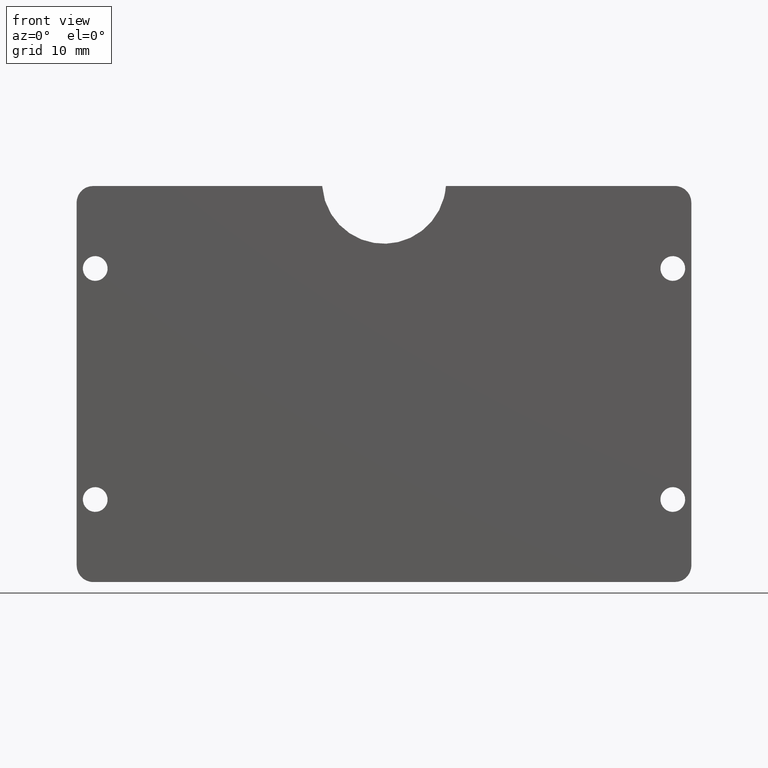
[diagram: clean part render]
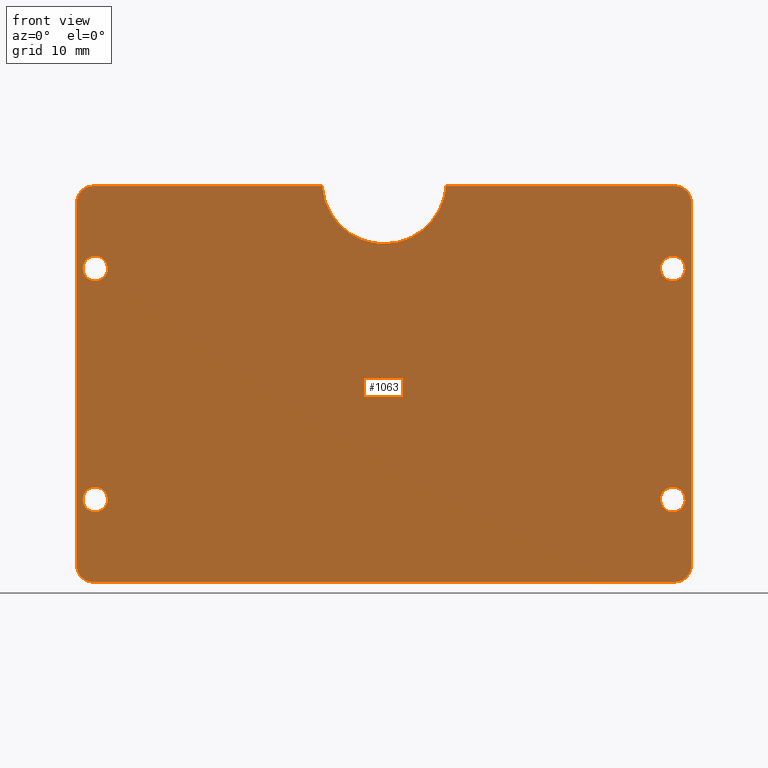
[diagram: same view with one face highlighted and labeled with its STEP entity id]
A machine part, front view. The second image highlights one B-rep face of the part: STEP entity #1063.
In plain terms, the highlighted face is a freeform B-spline surface patch.
Its self-contained STEP definition (entity closure, byte-faithful):
#66=CARTESIAN_POINT('',(33.510485710496411,-1.029293E-016,10.177051352337809));
#67=VERTEX_POINT('',#66);
#68=CARTESIAN_POINT('',(35.0,0.0,8.500000000000000));
#69=VERTEX_POINT('',#68);
#70=CARTESIAN_POINT('',(33.510485710496411,-1.029293E-016,10.177051352337806));
#71=CARTESIAN_POINT('',(33.499999999999993,0.0,10.088836179834262));
#72=CARTESIAN_POINT('',(33.500000000000000,0.0,10.0));
#73=CARTESIAN_POINT('',(33.500000000000007,0.0,8.500000000000002));
#74=CARTESIAN_POINT('',(35.0,0.0,8.500000000000000));
#82=(BOUNDED_CURVE()B_SPLINE_CURVE(2,(#70,#71,#72,#73,#74),.UNSPECIFIED.,.F.,.U.)B_SPLINE_CURVE_WITH_KNOTS((3,2,3),(0.229562473435616,0.250000000000000,0.500000000000000),.UNSPECIFIED.)CURVE()GEOMETRIC_REPRESENTATION_ITEM()RATIONAL_B_SPLINE_CURVE((0.956026754031026,0.976055948239888,1.0,0.707106781186548,1.0))REPRESENTATION_ITEM(''));
#83=EDGE_CURVE('',#67,#69,#82,.T.);
#85=CARTESIAN_POINT('',(36.497202197613127,-1.040834E-016,9.908427190376081));
#86=VERTEX_POINT('',#85);
#87=CARTESIAN_POINT('',(35.0,0.0,8.500000000000000));
#88=CARTESIAN_POINT('',(36.411059099751171,0.0,8.500000000000000));
#89=CARTESIAN_POINT('',(36.497202197613134,-1.040834E-016,9.908427190376081));
#97=(BOUNDED_CURVE()B_SPLINE_CURVE(2,(#87,#88,#89),.UNSPECIFIED.,.F.,.U.)B_SPLINE_CURVE_WITH_KNOTS((3,3),(0.500000000000000,0.739332962167835),.UNSPECIFIED.)CURVE()GEOMETRIC_REPRESENTATION_ITEM()RATIONAL_B_SPLINE_CURVE((1.0,0.719603993370018,0.976072041514321))REPRESENTATION_ITEM(''));
#98=EDGE_CURVE('',#69,#86,#97,.T.);
#165=CARTESIAN_POINT('',(35.0,0.0,11.500000000000000));
#166=VERTEX_POINT('',#165);
#167=CARTESIAN_POINT('',(35.0,0.0,11.500000000000000));
#168=CARTESIAN_POINT('',(33.667738211708254,0.0,11.500000000000000));
#169=CARTESIAN_POINT('',(33.510485710496411,-1.029293E-016,10.177051352337806));
#177=(BOUNDED_CURVE()B_SPLINE_CURVE(2,(#167,#168,#169),.UNSPECIFIED.,.F.,.U.)B_SPLINE_CURVE_WITH_KNOTS((3,3),(0.0,0.229562473435616),.UNSPECIFIED.)CURVE()GEOMETRIC_REPRESENTATION_ITEM()RATIONAL_B_SPLINE_CURVE((1.0,0.731050832946660,0.956026754031026))REPRESENTATION_ITEM(''));
#178=EDGE_CURVE('',#166,#67,#177,.T.);
#212=CARTESIAN_POINT('',(36.497202197613142,-1.040834E-016,9.908427190376081));
#213=CARTESIAN_POINT('',(36.500000000000000,0.0,9.954170854729583));
#214=CARTESIAN_POINT('',(36.500000000000007,0.0,10.0));
#215=CARTESIAN_POINT('',(36.500000000000007,0.0,11.500000000000000));
#216=CARTESIAN_POINT('',(35.0,0.0,11.500000000000000));
#224=(BOUNDED_CURVE()B_SPLINE_CURVE(2,(#212,#213,#214,#215,#216),.UNSPECIFIED.,.F.,.U.)B_SPLINE_CURVE_WITH_KNOTS((3,2,3),(0.739332962167834,0.750000000000000,1.0),.UNSPECIFIED.)CURVE()GEOMETRIC_REPRESENTATION_ITEM()RATIONAL_B_SPLINE_CURVE((0.976072041514318,0.987502787816528,1.0,0.707106781186548,1.0))REPRESENTATION_ITEM(''));
#225=EDGE_CURVE('',#86,#166,#224,.T.);
#252=CARTESIAN_POINT('',(33.510485710496411,-1.029293E-016,38.177051352337813));
#253=VERTEX_POINT('',#252);
#254=CARTESIAN_POINT('',(35.0,0.0,36.500000000000000));
#255=VERTEX_POINT('',#254);
#256=CARTESIAN_POINT('',(33.510485710496411,-1.029293E-016,38.177051352337806));
#257=CARTESIAN_POINT('',(33.499999999999993,0.0,38.088836179834267));
#258=CARTESIAN_POINT('',(33.500000000000000,0.0,38.0));
#259=CARTESIAN_POINT('',(33.500000000000007,0.0,36.500000000000007));
#260=CARTESIAN_POINT('',(35.0,0.0,36.500000000000000));
#268=(BOUNDED_CURVE()B_SPLINE_CURVE(2,(#256,#257,#258,#259,#260),.UNSPECIFIED.,.F.,.U.)B_SPLINE_CURVE_WITH_KNOTS((3,2,3),(0.229562473435616,0.250000000000000,0.500000000000000),.UNSPECIFIED.)CURVE()GEOMETRIC_REPRESENTATION_ITEM()RATIONAL_B_SPLINE_CURVE((0.956026754031026,0.976055948239888,1.0,0.707106781186548,1.0))REPRESENTATION_ITEM(''));
#269=EDGE_CURVE('',#253,#255,#268,.T.);
#271=CARTESIAN_POINT('',(36.497202197613127,-1.040834E-016,37.908427190376088));
#272=VERTEX_POINT('',#271);
#273=CARTESIAN_POINT('',(35.0,0.0,36.500000000000000));
#274=CARTESIAN_POINT('',(36.411059099751171,0.0,36.500000000000014));
#275=CARTESIAN_POINT('',(36.497202197613134,-1.040834E-016,37.908427190376088));
#283=(BOUNDED_CURVE()B_SPLINE_CURVE(2,(#273,#274,#275),.UNSPECIFIED.,.F.,.U.)B_SPLINE_CURVE_WITH_KNOTS((3,3),(0.500000000000000,0.739332962167835),.UNSPECIFIED.)CURVE()GEOMETRIC_REPRESENTATION_ITEM()RATIONAL_B_SPLINE_CURVE((1.0,0.719603993370018,0.976072041514321))REPRESENTATION_ITEM(''));
#284=EDGE_CURVE('',#255,#272,#283,.T.);
#351=CARTESIAN_POINT('',(35.0,0.0,39.500000000000000));
#352=VERTEX_POINT('',#351);
#353=CARTESIAN_POINT('',(35.0,0.0,39.500000000000000));
#354=CARTESIAN_POINT('',(33.667738211708254,0.0,39.500000000000007));
#355=CARTESIAN_POINT('',(33.510485710496411,-1.029293E-016,38.177051352337806));
#363=(BOUNDED_CURVE()B_SPLINE_CURVE(2,(#353,#354,#355),.UNSPECIFIED.,.F.,.U.)B_SPLINE_CURVE_WITH_KNOTS((3,3),(0.0,0.229562473435616),.UNSPECIFIED.)CURVE()GEOMETRIC_REPRESENTATION_ITEM()RATIONAL_B_SPLINE_CURVE((1.0,0.731050832946660,0.956026754031026))REPRESENTATION_ITEM(''));
#364=EDGE_CURVE('',#352,#253,#363,.T.);
#398=CARTESIAN_POINT('',(36.497202197613134,-1.040834E-016,37.908427190376088));
#399=CARTESIAN_POINT('',(36.500000000000007,0.0,37.954170854729583));
#400=CARTESIAN_POINT('',(36.500000000000007,0.0,38.0));
#401=CARTESIAN_POINT('',(36.500000000000007,0.0,39.500000000000000));
#402=CARTESIAN_POINT('',(35.0,0.0,39.500000000000000));
#410=(BOUNDED_CURVE()B_SPLINE_CURVE(2,(#398,#399,#400,#401,#402),.UNSPECIFIED.,.F.,.U.)B_SPLINE_CURVE_WITH_KNOTS((3,2,3),(0.739332962167835,0.750000000000000,1.0),.UNSPECIFIED.)CURVE()GEOMETRIC_REPRESENTATION_ITEM()RATIONAL_B_SPLINE_CURVE((0.976072041514319,0.987502787816529,1.0,0.707106781186548,1.0))REPRESENTATION_ITEM(''));
#411=EDGE_CURVE('',#272,#352,#410,.T.);
#438=CARTESIAN_POINT('',(-36.489514289503589,-1.029293E-016,10.177051352337809));
#439=VERTEX_POINT('',#438);
#440=CARTESIAN_POINT('',(-35.0,0.0,8.500000000000000));
#441=VERTEX_POINT('',#440);
#442=CARTESIAN_POINT('',(-36.489514289503589,-1.029293E-016,10.177051352337806));
#443=CARTESIAN_POINT('',(-36.500000000000007,0.0,10.088836179834262));
#444=CARTESIAN_POINT('',(-36.500000000000007,0.0,10.0));
#445=CARTESIAN_POINT('',(-36.500000000000007,0.0,8.500000000000002));
#446=CARTESIAN_POINT('',(-35.0,0.0,8.500000000000000));
#454=(BOUNDED_CURVE()B_SPLINE_CURVE(2,(#442,#443,#444,#445,#446),.UNSPECIFIED.,.F.,.U.)B_SPLINE_CURVE_WITH_KNOTS((3,2,3),(0.229562473435616,0.250000000000000,0.500000000000000),.UNSPECIFIED.)CURVE()GEOMETRIC_REPRESENTATION_ITEM()RATIONAL_B_SPLINE_CURVE((0.956026754031026,0.976055948239888,1.0,0.707106781186548,1.0))REPRESENTATION_ITEM(''));
#455=EDGE_CURVE('',#439,#441,#454,.T.);
#457=CARTESIAN_POINT('',(-33.502797802386873,-1.040834E-016,9.908427190376081));
#458=VERTEX_POINT('',#457);
#459=CARTESIAN_POINT('',(-35.0,0.0,8.500000000000000));
#460=CARTESIAN_POINT('',(-33.588940900248836,0.0,8.500000000000000));
#461=CARTESIAN_POINT('',(-33.502797802386866,-1.040834E-016,9.908427190376081));
#469=(BOUNDED_CURVE()B_SPLINE_CURVE(2,(#459,#460,#461),.UNSPECIFIED.,.F.,.U.)B_SPLINE_CURVE_WITH_KNOTS((3,3),(0.500000000000000,0.739332962167835),.UNSPECIFIED.)CURVE()GEOMETRIC_REPRESENTATION_ITEM()RATIONAL_B_SPLINE_CURVE((1.0,0.719603993370018,0.976072041514321))REPRESENTATION_ITEM(''));
#470=EDGE_CURVE('',#441,#458,#469,.T.);
#537=CARTESIAN_POINT('',(-35.0,0.0,11.500000000000000));
#538=VERTEX_POINT('',#537);
#539=CARTESIAN_POINT('',(-35.0,0.0,11.500000000000000));
#540=CARTESIAN_POINT('',(-36.332261788291738,0.0,11.500000000000000));
#541=CARTESIAN_POINT('',(-36.489514289503589,-1.029293E-016,10.177051352337806));
#549=(BOUNDED_CURVE()B_SPLINE_CURVE(2,(#539,#540,#541),.UNSPECIFIED.,.F.,.U.)B_SPLINE_CURVE_WITH_KNOTS((3,3),(0.0,0.229562473435616),.UNSPECIFIED.)CURVE()GEOMETRIC_REPRESENTATION_ITEM()RATIONAL_B_SPLINE_CURVE((1.0,0.731050832946660,0.956026754031026))REPRESENTATION_ITEM(''));
#550=EDGE_CURVE('',#538,#439,#549,.T.);
#584=CARTESIAN_POINT('',(-33.502797802386866,-1.040834E-016,9.908427190376081));
#585=CARTESIAN_POINT('',(-33.500000000000000,0.0,9.954170854729583));
#586=CARTESIAN_POINT('',(-33.500000000000000,0.0,10.0));
#587=CARTESIAN_POINT('',(-33.500000000000007,0.0,11.500000000000000));
#588=CARTESIAN_POINT('',(-35.0,0.0,11.500000000000000));
#596=(BOUNDED_CURVE()B_SPLINE_CURVE(2,(#584,#585,#586,#587,#588),.UNSPECIFIED.,.F.,.U.)B_SPLINE_CURVE_WITH_KNOTS((3,2,3),(0.739332962167834,0.750000000000000,1.0),.UNSPECIFIED.)CURVE()GEOMETRIC_REPRESENTATION_ITEM()RATIONAL_B_SPLINE_CURVE((0.976072041514318,0.987502787816528,1.0,0.707106781186548,1.0))REPRESENTATION_ITEM(''));
#597=EDGE_CURVE('',#458,#538,#596,.T.);
#624=CARTESIAN_POINT('',(-36.489514289503589,-1.029293E-016,38.177051352337799));
#625=VERTEX_POINT('',#624);
#626=CARTESIAN_POINT('',(-35.0,0.0,36.500000000000000));
#627=VERTEX_POINT('',#626);
#628=CARTESIAN_POINT('',(-36.489514289503589,-1.029293E-016,38.177051352337799));
#629=CARTESIAN_POINT('',(-36.500000000000007,0.0,38.088836179834267));
#630=CARTESIAN_POINT('',(-36.500000000000007,0.0,38.0));
#631=CARTESIAN_POINT('',(-36.500000000000007,0.0,36.500000000000007));
#632=CARTESIAN_POINT('',(-35.0,0.0,36.500000000000000));
#640=(BOUNDED_CURVE()B_SPLINE_CURVE(2,(#628,#629,#630,#631,#632),.UNSPECIFIED.,.F.,.U.)B_SPLINE_CURVE_WITH_KNOTS((3,2,3),(0.229562473435616,0.250000000000000,0.500000000000000),.UNSPECIFIED.)CURVE()GEOMETRIC_REPRESENTATION_ITEM()RATIONAL_B_SPLINE_CURVE((0.956026754031027,0.976055948239888,1.0,0.707106781186548,1.0))REPRESENTATION_ITEM(''));
#641=EDGE_CURVE('',#625,#627,#640,.T.);
#643=CARTESIAN_POINT('',(-33.502797802386873,-1.040834E-016,37.908427190376067));
#644=VERTEX_POINT('',#643);
#645=CARTESIAN_POINT('',(-35.0,0.0,36.500000000000000));
#646=CARTESIAN_POINT('',(-33.588940900248851,0.0,36.500000000000000));
#647=CARTESIAN_POINT('',(-33.502797802386873,-1.040834E-016,37.908427190376081));
#655=(BOUNDED_CURVE()B_SPLINE_CURVE(2,(#645,#646,#647),.UNSPECIFIED.,.F.,.U.)B_SPLINE_CURVE_WITH_KNOTS((3,3),(0.500000000000000,0.739332962167833),.UNSPECIFIED.)CURVE()GEOMETRIC_REPRESENTATION_ITEM()RATIONAL_B_SPLINE_CURVE((1.0,0.719603993370021,0.976072041514316))REPRESENTATION_ITEM(''));
#656=EDGE_CURVE('',#627,#644,#655,.T.);
#723=CARTESIAN_POINT('',(-35.0,0.0,39.500000000000000));
#724=VERTEX_POINT('',#723);
#725=CARTESIAN_POINT('',(-35.0,0.0,39.500000000000000));
#726=CARTESIAN_POINT('',(-36.332261788291738,0.0,39.499999999999993));
#727=CARTESIAN_POINT('',(-36.489514289503582,-1.029293E-016,38.177051352337799));
#735=(BOUNDED_CURVE()B_SPLINE_CURVE(2,(#725,#726,#727),.UNSPECIFIED.,.F.,.U.)B_SPLINE_CURVE_WITH_KNOTS((3,3),(0.0,0.229562473435616),.UNSPECIFIED.)CURVE()GEOMETRIC_REPRESENTATION_ITEM()RATIONAL_B_SPLINE_CURVE((1.0,0.731050832946659,0.956026754031027))REPRESENTATION_ITEM(''));
#736=EDGE_CURVE('',#724,#625,#735,.T.);
#770=CARTESIAN_POINT('',(-33.502797802386873,-1.040834E-016,37.908427190376074));
#771=CARTESIAN_POINT('',(-33.500000000000007,0.0,37.954170854729576));
#772=CARTESIAN_POINT('',(-33.500000000000000,0.0,38.0));
#773=CARTESIAN_POINT('',(-33.500000000000007,0.0,39.500000000000000));
#774=CARTESIAN_POINT('',(-35.0,0.0,39.500000000000000));
#782=(BOUNDED_CURVE()B_SPLINE_CURVE(2,(#770,#771,#772,#773,#774),.UNSPECIFIED.,.F.,.U.)B_SPLINE_CURVE_WITH_KNOTS((3,2,3),(0.739332962167834,0.750000000000000,1.0),.UNSPECIFIED.)CURVE()GEOMETRIC_REPRESENTATION_ITEM()RATIONAL_B_SPLINE_CURVE((0.976072041514317,0.987502787816528,1.0,0.707106781186548,1.0))REPRESENTATION_ITEM(''));
#783=EDGE_CURVE('',#644,#724,#782,.T.);
#920=CARTESIAN_POINT('',(-40.971274855604548,0.0,50.397599906966683));
#921=CARTESIAN_POINT('',(40.971276853850263,0.0,50.397599906966683));
#922=CARTESIAN_POINT('',(-40.971274855604541,0.0,-2.397601194427014));
#923=CARTESIAN_POINT('',(40.971276853850263,0.0,-2.397601194427014));
#924=B_SPLINE_SURFACE_WITH_KNOTS('',1,1,((#920,#922),(#921,#923)),.UNSPECIFIED.,.F.,.F.,.U.,(2,2),(2,2),(0.0,81.942551709454804),(0.0,52.795201101393687),.UNSPECIFIED.);
#925=CARTESIAN_POINT('',(-35.250000000000000,0.0,48.0));
#926=VERTEX_POINT('',#925);
#927=CARTESIAN_POINT('',(-7.499999857678900,0.0,47.999999869832301));
#928=VERTEX_POINT('',#927);
#929=CARTESIAN_POINT('',(-35.250000000000000,0.0,48.0));
#930=CARTESIAN_POINT('',(-7.499999857678900,0.0,47.999999869832301));
#931=QUASI_UNIFORM_CURVE('',1,(#929,#930),.UNSPECIFIED.,.F.,.U.);
#932=EDGE_CURVE('',#926,#928,#931,.T.);
#933=ORIENTED_EDGE('',*,*,#932,.F.);
#934=CARTESIAN_POINT('',(-37.250000000000000,0.0,46.0));
#935=VERTEX_POINT('',#934);
#936=CARTESIAN_POINT('',(-35.250000000000000,0.0,48.0));
#937=CARTESIAN_POINT('',(-37.250000000000000,0.0,48.000000000000014));
#938=CARTESIAN_POINT('',(-37.250000000000000,0.0,46.0));
#946=(BOUNDED_CURVE()B_SPLINE_CURVE(2,(#936,#937,#938),.UNSPECIFIED.,.F.,.U.)CURVE()GEOMETRIC_REPRESENTATION_ITEM()QUASI_UNIFORM_CURVE()RATIONAL_B_SPLINE_CURVE((1.0,0.707106781186548,1.0))REPRESENTATION_ITEM(''));
#947=EDGE_CURVE('',#926,#935,#946,.T.);
#948=ORIENTED_EDGE('',*,*,#947,.T.);
#949=CARTESIAN_POINT('',(-37.250000000000000,0.0,2.0));
#950=VERTEX_POINT('',#949);
#951=CARTESIAN_POINT('',(-37.250000000000000,0.0,2.0));
#952=CARTESIAN_POINT('',(-37.250000000000000,0.0,46.0));
#953=QUASI_UNIFORM_CURVE('',1,(#951,#952),.UNSPECIFIED.,.F.,.U.);
#954=EDGE_CURVE('',#950,#935,#953,.T.);
#955=ORIENTED_EDGE('',*,*,#954,.F.);
#956=CARTESIAN_POINT('',(-35.250000000000000,0.0,0.0));
#957=VERTEX_POINT('',#956);
#958=CARTESIAN_POINT('',(-37.250000000000000,0.0,2.0));
#959=CARTESIAN_POINT('',(-37.250000000000000,0.0,0.0));
#960=CARTESIAN_POINT('',(-35.250000000000000,0.0,0.0));
#968=(BOUNDED_CURVE()B_SPLINE_CURVE(2,(#958,#959,#960),.UNSPECIFIED.,.F.,.U.)CURVE()GEOMETRIC_REPRESENTATION_ITEM()QUASI_UNIFORM_CURVE()RATIONAL_B_SPLINE_CURVE((1.0,0.707106781186548,1.0))REPRESENTATION_ITEM(''));
#969=EDGE_CURVE('',#950,#957,#968,.T.);
#970=ORIENTED_EDGE('',*,*,#969,.T.);
#971=CARTESIAN_POINT('',(35.250000000000000,0.0,0.0));
#972=VERTEX_POINT('',#971);
#973=CARTESIAN_POINT('',(35.250000000000000,0.0,0.0));
#974=CARTESIAN_POINT('',(-35.250000000000000,0.0,0.0));
#975=QUASI_UNIFORM_CURVE('',1,(#973,#974),.UNSPECIFIED.,.F.,.U.);
#976=EDGE_CURVE('',#972,#957,#975,.T.);
#977=ORIENTED_EDGE('',*,*,#976,.F.);
#978=CARTESIAN_POINT('',(37.250000000000000,0.0,2.0));
#979=VERTEX_POINT('',#978);
#980=CARTESIAN_POINT('',(35.250000000000000,0.0,0.0));
#981=CARTESIAN_POINT('',(37.250000000000000,0.0,0.0));
#982=CARTESIAN_POINT('',(37.250000000000000,0.0,2.0));
#990=(BOUNDED_CURVE()B_SPLINE_CURVE(2,(#980,#981,#982),.UNSPECIFIED.,.F.,.U.)CURVE()GEOMETRIC_REPRESENTATION_ITEM()QUASI_UNIFORM_CURVE()RATIONAL_B_SPLINE_CURVE((1.0,0.707106781186548,1.0))REPRESENTATION_ITEM(''));
#991=EDGE_CURVE('',#972,#979,#990,.T.);
#992=ORIENTED_EDGE('',*,*,#991,.T.);
#993=CARTESIAN_POINT('',(37.250000000000000,0.0,46.0));
#994=VERTEX_POINT('',#993);
#995=CARTESIAN_POINT('',(37.250000000000000,0.0,46.0));
#996=CARTESIAN_POINT('',(37.250000000000000,0.0,2.0));
#997=QUASI_UNIFORM_CURVE('',1,(#995,#996),.UNSPECIFIED.,.F.,.U.);
#998=EDGE_CURVE('',#994,#979,#997,.T.);
#999=ORIENTED_EDGE('',*,*,#998,.F.);
#1000=CARTESIAN_POINT('',(35.250000000000000,0.0,48.0));
#1001=VERTEX_POINT('',#1000);
#1002=CARTESIAN_POINT('',(37.250000000000000,0.0,46.0));
#1003=CARTESIAN_POINT('',(37.250000000000000,0.0,48.000000000000014));
#1004=CARTESIAN_POINT('',(35.250000000000000,0.0,48.0));
#1012=(BOUNDED_CURVE()B_SPLINE_CURVE(2,(#1002,#1003,#1004),.UNSPECIFIED.,.F.,.U.)CURVE()GEOMETRIC_REPRESENTATION_ITEM()QUASI_UNIFORM_CURVE()RATIONAL_B_SPLINE_CURVE((1.0,0.707106781186548,1.0))REPRESENTATION_ITEM(''));
#1013=EDGE_CURVE('',#994,#1001,#1012,.T.);
#1014=ORIENTED_EDGE('',*,*,#1013,.T.);
#1015=CARTESIAN_POINT('',(7.499999857678900,0.0,47.999999869832202));
#1016=VERTEX_POINT('',#1015);
#1017=CARTESIAN_POINT('',(7.499999857678900,0.0,47.999999869832202));
#1018=CARTESIAN_POINT('',(35.250000000000000,0.0,48.0));
#1019=QUASI_UNIFORM_CURVE('',1,(#1017,#1018),.UNSPECIFIED.,.F.,.U.);
#1020=EDGE_CURVE('',#1016,#1001,#1019,.T.);
#1021=ORIENTED_EDGE('',*,*,#1020,.F.);
#1022=CARTESIAN_POINT('',(-7.499999857678897,0.0,47.999999869832301));
#1023=CARTESIAN_POINT('',(-7.016666536005011,0.0,41.0));
#1024=CARTESIAN_POINT('',(0.0,0.0,40.999999999999993));
#1025=CARTESIAN_POINT('',(7.016666536004917,0.0,41.0));
#1026=CARTESIAN_POINT('',(7.499999857678890,0.0,47.999999869832202));
#1034=(BOUNDED_CURVE()B_SPLINE_CURVE(2,(#1022,#1023,#1024,#1025,#1026),.UNSPECIFIED.,.F.,.U.)B_SPLINE_CURVE_WITH_KNOTS((3,2,3),(0.0,0.500000000000000,1.0),.UNSPECIFIED.)CURVE()GEOMETRIC_REPRESENTATION_ITEM()RATIONAL_B_SPLINE_CURVE((1.0,0.731055268113277,1.0,0.731055268113277,1.0))REPRESENTATION_ITEM(''));
#1035=EDGE_CURVE('',#928,#1016,#1034,.T.);
#1036=ORIENTED_EDGE('',*,*,#1035,.F.);
#1037=EDGE_LOOP('',(#933,#948,#955,#970,#977,#992,#999,#1014,#1021,#1036));
#1038=FACE_OUTER_BOUND('',#1037,.T.);
#1039=ORIENTED_EDGE('',*,*,#656,.F.);
#1040=ORIENTED_EDGE('',*,*,#641,.F.);
#1041=ORIENTED_EDGE('',*,*,#736,.F.);
#1042=ORIENTED_EDGE('',*,*,#783,.F.);
#1043=EDGE_LOOP('',(#1039,#1040,#1041,#1042));
#1044=FACE_BOUND('',#1043,.T.);
#1045=ORIENTED_EDGE('',*,*,#470,.F.);
#1046=ORIENTED_EDGE('',*,*,#455,.F.);
#1047=ORIENTED_EDGE('',*,*,#550,.F.);
#1048=ORIENTED_EDGE('',*,*,#597,.F.);
#1049=EDGE_LOOP('',(#1045,#1046,#1047,#1048));
#1050=FACE_BOUND('',#1049,.T.);
#1051=ORIENTED_EDGE('',*,*,#284,.F.);
#1052=ORIENTED_EDGE('',*,*,#269,.F.);
#1053=ORIENTED_EDGE('',*,*,#364,.F.);
#1054=ORIENTED_EDGE('',*,*,#411,.F.);
#1055=EDGE_LOOP('',(#1051,#1052,#1053,#1054));
#1056=FACE_BOUND('',#1055,.T.);
#1057=ORIENTED_EDGE('',*,*,#98,.F.);
#1058=ORIENTED_EDGE('',*,*,#83,.F.);
#1059=ORIENTED_EDGE('',*,*,#178,.F.);
#1060=ORIENTED_EDGE('',*,*,#225,.F.);
#1061=EDGE_LOOP('',(#1057,#1058,#1059,#1060));
#1062=FACE_BOUND('',#1061,.T.);
#1063=ADVANCED_FACE('',(#1038,#1044,#1050,#1056,#1062),#924,.F.);